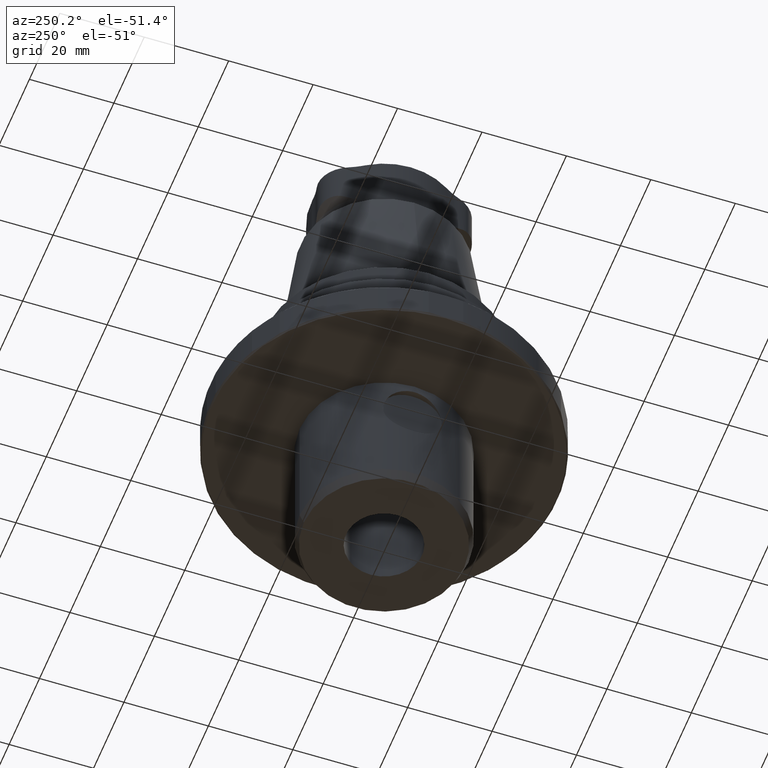
[diagram: clean part render]
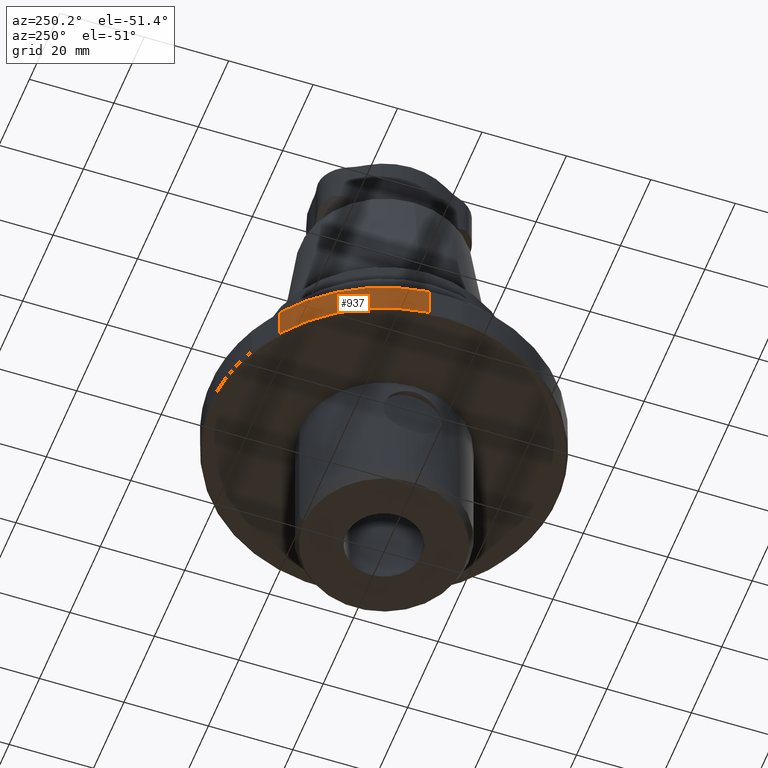
[diagram: same view with one face highlighted and labeled with its STEP entity id]
A machine part, auxiliary view. The second image highlights one B-rep face of the part: STEP entity #937.
In plain terms, the highlighted cylindrical surface (partial cylindrical patch) has radius 41 mm, axis along (-0, -0, -1).
Its self-contained STEP definition (entity closure, byte-faithful):
#47=LINE('',#1759,#75);
#48=LINE('',#1763,#76);
#75=VECTOR('',#1300,1000.);
#76=VECTOR('',#1305,1000.);
#151=CIRCLE('',#1043,41.);
#159=CIRCLE('',#1062,41.);
#361=ORIENTED_EDGE('',*,*,#520,.F.);
#362=ORIENTED_EDGE('',*,*,#521,.T.);
#363=ORIENTED_EDGE('',*,*,#494,.T.);
#364=ORIENTED_EDGE('',*,*,#519,.T.);
#494=EDGE_CURVE('',#603,#602,#151,.T.);
#519=EDGE_CURVE('',#602,#617,#47,.T.);
#520=EDGE_CURVE('',#618,#617,#159,.T.);
#521=EDGE_CURVE('',#618,#603,#48,.F.);
#602=VERTEX_POINT('',#1687);
#603=VERTEX_POINT('',#1689);
#617=VERTEX_POINT('',#1758);
#618=VERTEX_POINT('',#1762);
#746=EDGE_LOOP('',(#361,#362,#363,#364));
#841=FACE_BOUND('',#746,.T.);
#880=CYLINDRICAL_SURFACE('',#1061,41.);
#937=ADVANCED_FACE('',(#841),#880,.T.);
#1043=AXIS2_PLACEMENT_3D('',#1688,#1254,#1255);
#1061=AXIS2_PLACEMENT_3D('',#1760,#1301,#1302);
#1062=AXIS2_PLACEMENT_3D('',#1761,#1303,#1304);
#1254=DIRECTION('',(-7.30126435159279E-33,-9.52839055771651E-18,-1.));
#1255=DIRECTION('',(-1.,-8.32667268468868E-17,2.89465139560709E-33));
#1300=DIRECTION('',(-7.30126435159279E-33,-9.52839055771651E-18,-1.));
#1301=DIRECTION('',(-7.30126435159279E-33,-9.52839055771651E-18,-1.));
#1302=DIRECTION('',(-1.,-8.32667268468868E-17,2.89465139560709E-33));
#1303=DIRECTION('',(-7.30126435159279E-33,-9.52839055771651E-18,-1.));
#1304=DIRECTION('',(-1.,-8.32667268468868E-17,2.89465139560709E-33));
#1305=DIRECTION('',(-7.30126435159279E-33,-9.52839055771651E-18,-1.));
#1687=CARTESIAN_POINT('',(-23.9028559776274,33.3114616327895,-1.3));
#1688=CARTESIAN_POINT('',(7.88665112559661E-15,-9.43310665213939E-17,-1.3));
#1689=CARTESIAN_POINT('',(-40.8,4.0447496832313,-1.3));
#1758=CARTESIAN_POINT('',(-23.9028559776273,33.3114616327895,-8.70000000000003));
#1759=CARTESIAN_POINT('',(-23.9028559776274,33.3114616327895,-1.00000000000001));
#1760=CARTESIAN_POINT('',(7.88665112559661E-15,-9.1472549354079E-17,-1.00000000000001));
#1761=CARTESIAN_POINT('',(7.88665112559661E-15,-1.64841156648496E-16,-8.70000000000001));
#1762=CARTESIAN_POINT('',(-40.8,4.04474968323125,-8.70000000000001));
#1763=CARTESIAN_POINT('',(-40.8,4.0447496832313,-1.00000000000001));